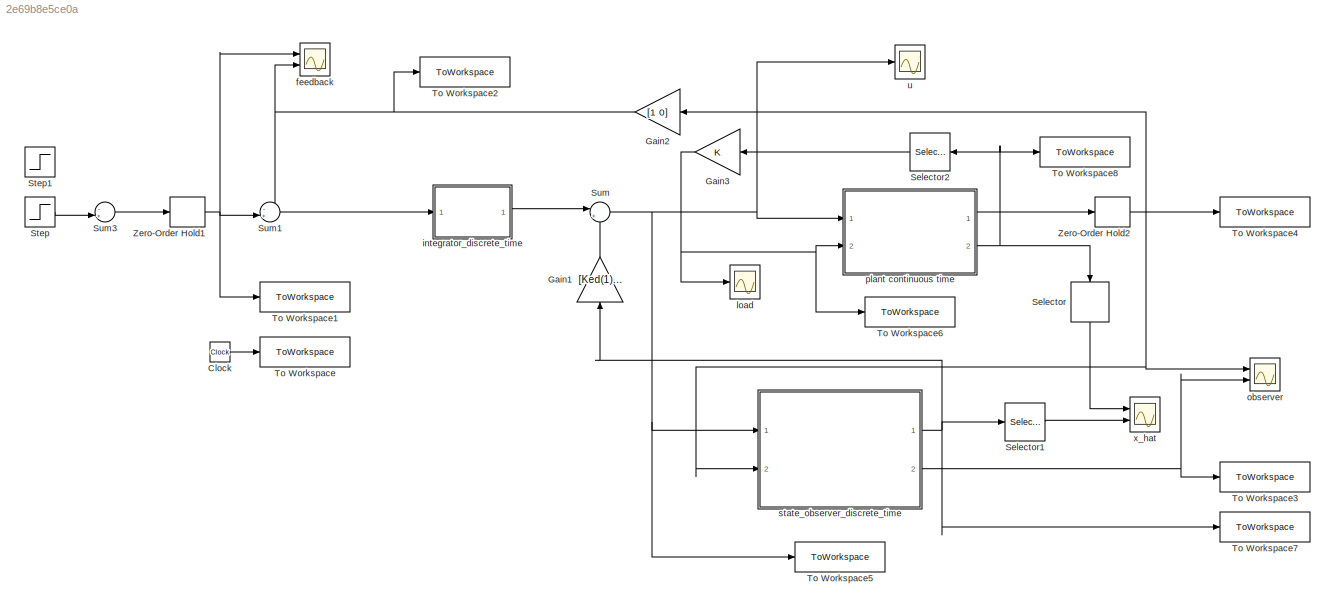
MODEL slx_2e69b8e5ce0a
KIND model
CONFIG AbsTol = auto
CONFIG EnableMultiTasking = off
CONFIG FixedStep = auto
CONFIG MaxStep = 1e-4
CONFIG MinStep = auto
CONFIG RelTol = 1e-4
CONFIG SampleTimeConstraint = Unconstrained
CONFIG Solver = ode45
CONFIG SolverName = ode45
CONFIG StartTime = 0.0
CONFIG StopTime = simlength
BLOCK [Clock] Clock
BLOCK [Gain] Gain1
  Gain = [Ked(1) Ked(2) Ked(3)]
  Multiplication = Matrix(K*u)
  NameLocation = right
BLOCK [Gain] Gain2
  Gain = [1 0]
  Multiplication = Matrix(K*u)
  NameLocation = top
BLOCK [Gain] Gain3
  NameLocation = top
BLOCK [Selector] Selector
  IndexOptions = Index vector (dialog)
  Indices = 2
  InputPortWidth = 3
  NameLocation = left
  OutputSizes = 1
  Ports = [1, 1]
BLOCK [Selector] Selector1
  IndexOptions = Index vector (dialog)
  Indices = 2
  InputPortWidth = 3
  OutputSizes = 1
  Ports = [1, 1]
BLOCK [Selector] Selector2
  IndexOptions = Index vector (dialog)
  Indices = 2
  InputPortWidth = 3
  OutputSizes = 1
  Ports = [1, 1]
BLOCK [Step] Step
  SampleTime = 0
  Time = 0.1
BLOCK [Step] Step1
  SampleTime = 0
  Time = 0.15
BLOCK [Sum] Sum
  Inputs = |+-
  Ports = [2, 1]
BLOCK [Sum] Sum1
  Inputs = -+|
  Ports = [2, 1]
BLOCK [Sum] Sum3
  Inputs = -+|
  Ports = [2, 1]
BLOCK [ToWorkspace] To Workspace
  FixptAsFi = on
  MaxDataPoints = Nc
  Ports = [1]
  SampleTime = Tc
  VariableName = t
BLOCK [ToWorkspace] To Workspace1
  FixptAsFi = on
  MaxDataPoints = Nc
  Ports = [1]
  SampleTime = Tc
  VariableName = position_ref
BLOCK [ToWorkspace] To Workspace2
  FixptAsFi = on
  MaxDataPoints = Nc
  Ports = [1]
  SampleTime = Tc
  VariableName = position
BLOCK [ToWorkspace] To Workspace3
  FixptAsFi = on
  MaxDataPoints = Nc
  Ports = [1]
  SampleTime = Tc
  VariableName = y_hat
BLOCK [ToWorkspace] To Workspace4
  FixptAsFi = on
  MaxDataPoints = Nc
  Ports = [1]
  SampleTime = Tc
  VariableName = y
BLOCK [ToWorkspace] To Workspace5
  FixptAsFi = on
  MaxDataPoints = Nc
  Ports = [1]
  SampleTime = Tc
  VariableName = u
BLOCK [ToWorkspace] To Workspace6
  FixptAsFi = on
  MaxDataPoints = Nc
  Ports = [1]
  SampleTime = Tc
  VariableName = fl
BLOCK [ToWorkspace] To Workspace7
  FixptAsFi = on
  MaxDataPoints = Nc
  Ports = [1]
  SampleTime = Tc
  VariableName = state_hat
BLOCK [ToWorkspace] To Workspace8
  FixptAsFi = on
  MaxDataPoints = Nc
  Ports = [1]
  SampleTime = Tc
  VariableName = state
BLOCK [ZeroOrderHold] Zero-Order Hold1
  SampleTime = Ts
BLOCK [ZeroOrderHold] Zero-Order Hold2
  NameLocation = top
  SampleTime = Ts
BLOCK [Scope] feedback
  Floating = off
  NumInputPorts = 2
  Ports = [2]
  ScopeSpecificationString = Simulink.scopes.TimeScopeBlockCfg('CurrentConfiguration', extmgr.ConfigurationSet(extmgr.Configuration('Core','General UI',true),extmgr.Configuration('Core','Source UI',true),extmgr.Configuration('Sources','WiredSimulink',true,'DataLoggingVariableName','ScopeData1'),extmgr.Configuration('Visuals','Time Domain',true,'SerializedDisplays',{struct('MinYLimReal','-0.12546','MaxYLimReal','1.12918','YLab...<+1508ch>
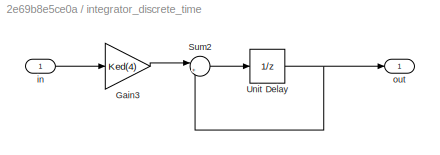
BLOCK [SubSystem] integrator_discrete_time
  Ports = [1, 1]
  RequestExecContextInheritance = off
BLOCK [Gain] integrator_discrete_time/Gain3
  Gain = Ked(4)
BLOCK [Sum] integrator_discrete_time/Sum2
  Inputs = |++
  Ports = [2, 1]
BLOCK [UnitDelay] integrator_discrete_time/Unit Delay
  HasFrameUpgradeWarning = on
  SampleTime = Ts
BLOCK [Inport] integrator_discrete_time/in
BLOCK [Outport] integrator_discrete_time/out
BLOCK [Scope] load
  Floating = off
  NumInputPorts = 1
  Ports = [1]
  ScopeSpecificationString = Simulink.scopes.TimeScopeBlockCfg('CurrentConfiguration', extmgr.ConfigurationSet(extmgr.Configuration('Core','General UI',true),extmgr.Configuration('Core','Source UI',true),extmgr.Configuration('Sources','WiredSimulink',true,'DataLoggingVariableName','ScopeData1'),extmgr.Configuration('Visuals','Time Domain',true,'SerializedDisplays',{struct('MinYLimReal','-1.96495','MaxYLimReal','9.70967','YLab...<+1488ch>
BLOCK [Scope] observer
  Floating = off
  NumInputPorts = 2
  Ports = [2]
  ScopeSpecificationString = Simulink.scopes.TimeScopeBlockCfg('CurrentConfiguration', extmgr.ConfigurationSet(extmgr.Configuration('Core','General UI',true),extmgr.Configuration('Core','Source UI',true),extmgr.Configuration('Sources','WiredSimulink',true),extmgr.Configuration('Visuals','Time Domain',true,'SerializedDisplays',{struct('MinYLimReal','-2.82722','MaxYLimReal','4.11372','YLabelReal','','MinYLimMag','0.00000','MaxY...<+2083ch>
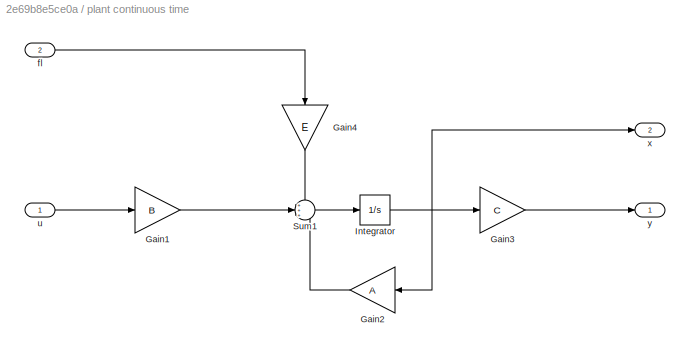
BLOCK [SubSystem] plant continuous time
  Ports = [2, 2]
  RequestExecContextInheritance = off
BLOCK [Gain] plant continuous time/Gain1
  Gain = B
  Multiplication = Matrix(K*u)
BLOCK [Gain] plant continuous time/Gain2
  Gain = A
  Multiplication = Matrix(K*u)
  NameLocation = top
BLOCK [Gain] plant continuous time/Gain3
  Gain = C
  Multiplication = Matrix(K*u)
BLOCK [Gain] plant continuous time/Gain4
  Gain = E
  Multiplication = Matrix(K*u)
  NameLocation = left
BLOCK [Integrator] plant continuous time/Integrator
  Ports = [1, 1]
BLOCK [Sum] plant continuous time/Sum1
  Inputs = +++
  Ports = [3, 1]
BLOCK [Inport] plant continuous time/fl
  Port = 2
BLOCK [Inport] plant continuous time/u
BLOCK [Outport] plant continuous time/x
  Port = 2
BLOCK [Outport] plant continuous time/y
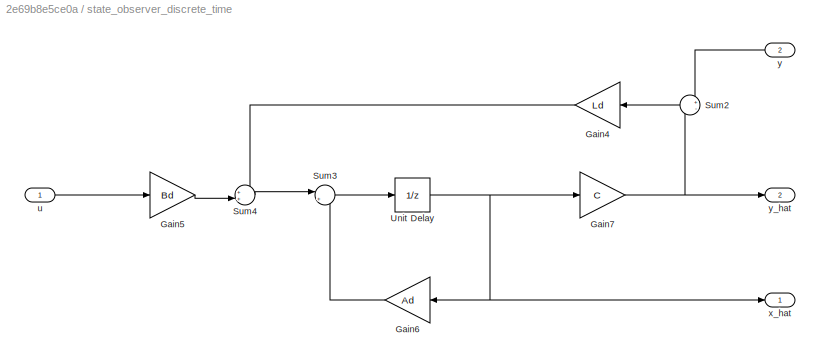
BLOCK [SubSystem] state_observer_discrete_time
  Ports = [2, 2]
  RequestExecContextInheritance = off
BLOCK [Gain] state_observer_discrete_time/Gain4
  Gain = Ld
  Multiplication = Matrix(K*u)
  NameLocation = top
BLOCK [Gain] state_observer_discrete_time/Gain5
  Gain = Bd
  Multiplication = Matrix(K*u)
BLOCK [Gain] state_observer_discrete_time/Gain6
  Gain = Ad
  Multiplication = Matrix(K*u)
  NameLocation = top
BLOCK [Gain] state_observer_discrete_time/Gain7
  Gain = C
  Multiplication = Matrix(K*u)
BLOCK [Sum] state_observer_discrete_time/Sum2
  Inputs = +-
  NameLocation = top
  Ports = [2, 1]
BLOCK [Sum] state_observer_discrete_time/Sum3
  Inputs = |++
  Ports = [2, 1]
BLOCK [Sum] state_observer_discrete_time/Sum4
  Inputs = ++|
  Ports = [2, 1]
BLOCK [UnitDelay] state_observer_discrete_time/Unit Delay
  HasFrameUpgradeWarning = on
  SampleTime = Ts
BLOCK [Inport] state_observer_discrete_time/u
BLOCK [Outport] state_observer_discrete_time/x_hat
BLOCK [Inport] state_observer_discrete_time/y
  Port = 2
BLOCK [Outport] state_observer_discrete_time/y_hat
  Port = 2
BLOCK [Scope] u
  Floating = off
  NumInputPorts = 1
  Ports = [1]
  ScopeSpecificationString = Simulink.scopes.TimeScopeBlockCfg('CurrentConfiguration', extmgr.ConfigurationSet(extmgr.Configuration('Core','General UI',true),extmgr.Configuration('Core','Source UI',true),extmgr.Configuration('Sources','WiredSimulink',true,'DataLoggingVariableName','ScopeData2'),extmgr.Configuration('Visuals','Time Domain',true,'SerializedDisplays',{struct('MinYLimReal','-0.24605','MaxYLimReal','2.21445','YLab...<+1489ch>
BLOCK [Scope] x_hat
  Floating = off
  NumInputPorts = 2
  Ports = [2]
  ScopeSpecificationString = Simulink.scopes.TimeScopeBlockCfg('CurrentConfiguration', extmgr.ConfigurationSet(extmgr.Configuration('Core','General UI',true),extmgr.Configuration('Core','Source UI',true),extmgr.Configuration('Sources','WiredSimulink',true,'DataLoggingVariableName','ScopeData3'),extmgr.Configuration('Visuals','Time Domain',true,'SerializedDisplays',{struct('MinYLimReal','-1.26784','MaxYLimReal','6.18919','YLab...<+1504ch>
LINE Clock:1 -> To Workspace:1
LINE Gain1:1 -> Sum:2
NET Gain2:1 -> Sum1:1, To Workspace2:1, feedback:2
NET Gain3:1 -> To Workspace6:1, load:1, plant continuous time:2
LINE Selector1:1 -> x_hat:2
LINE Selector2:1 -> Gain3:1
LINE Selector:1 -> x_hat:1
LINE Step:1 -> Sum3:2
LINE Sum1:1 -> integrator_discrete_time:1
LINE Sum3:1 -> Zero-Order Hold1:1
NET Sum:1 -> To Workspace5:1, plant continuous time:1, state_observer_discrete_time:1, u:1
NET Zero-Order Hold1:1 -> Sum1:2, To Workspace1:1, feedback:1
NET Zero-Order Hold2:1 -> Gain2:1, To Workspace4:1, observer:1, state_observer_discrete_time:2
LINE integrator_discrete_time/Gain3:1 -> integrator_discrete_time/Sum2:1
LINE integrator_discrete_time/Sum2:1 -> integrator_discrete_time/Unit Delay:1
NET integrator_discrete_time/Unit Delay:1 -> integrator_discrete_time/Sum2:2, integrator_discrete_time/out:1
LINE integrator_discrete_time/in:1 -> integrator_discrete_time/Gain3:1
LINE integrator_discrete_time:1 -> Sum:1
LINE plant continuous time/Gain1:1 -> plant continuous time/Sum1:2
LINE plant continuous time/Gain2:1 -> plant continuous time/Sum1:3
LINE plant continuous time/Gain3:1 -> plant continuous time/y:1
LINE plant continuous time/Gain4:1 -> plant continuous time/Sum1:1
NET plant continuous time/Integrator:1 -> plant continuous time/Gain2:1, plant continuous time/Gain3:1, plant continuous time/x:1
LINE plant continuous time/Sum1:1 -> plant continuous time/Integrator:1
LINE plant continuous time/fl:1 -> plant continuous time/Gain4:1
LINE plant continuous time/u:1 -> plant continuous time/Gain1:1
LINE plant continuous time:1 -> Zero-Order Hold2:1
NET plant continuous time:2 -> Selector2:1, Selector:1, To Workspace8:1
LINE state_observer_discrete_time/Gain4:1 -> state_observer_discrete_time/Sum4:1
LINE state_observer_discrete_time/Gain5:1 -> state_observer_discrete_time/Sum4:2
LINE state_observer_discrete_time/Gain6:1 -> state_observer_discrete_time/Sum3:2
NET state_observer_discrete_time/Gain7:1 -> state_observer_discrete_time/Sum2:2, state_observer_discrete_time/y_hat:1
LINE state_observer_discrete_time/Sum2:1 -> state_observer_discrete_time/Gain4:1
LINE state_observer_discrete_time/Sum3:1 -> state_observer_discrete_time/Unit Delay:1
LINE state_observer_discrete_time/Sum4:1 -> state_observer_discrete_time/Sum3:1
NET state_observer_discrete_time/Unit Delay:1 -> state_observer_discrete_time/Gain6:1, state_observer_discrete_time/Gain7:1, state_observer_discrete_time/x_hat:1
LINE state_observer_discrete_time/u:1 -> state_observer_discrete_time/Gain5:1
LINE state_observer_discrete_time/y:1 -> state_observer_discrete_time/Sum2:1
NET state_observer_discrete_time:1 -> Gain1:1, Selector1:1, To Workspace7:1
NET state_observer_discrete_time:2 -> To Workspace3:1, observer:2
note: NET lines group one-source signal fan-out (src -> all destinations, sorted); 1:1 wires keep LINE
